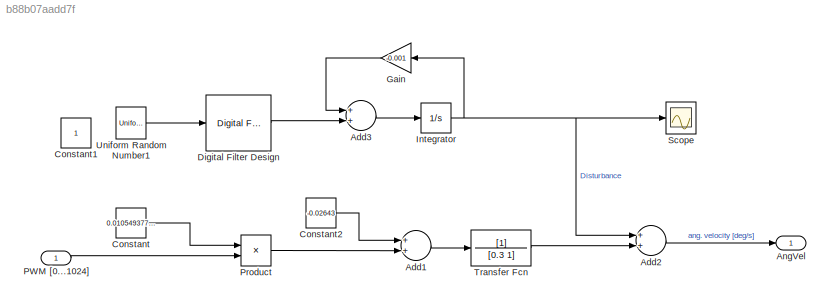
MODEL slx_b88b07aadd7f
KIND model
CONFIG AbsTol = auto
CONFIG FixedStep = 0.01
CONFIG MaxStep = auto
CONFIG MinStep = auto
CONFIG RelTol = 1e-3
CONFIG SampleTimeConstraint = Unconstrained
CONFIG Solver = ode45
CONFIG SolverMode = Auto
CONFIG SolverName = ode45
CONFIG StartTime = 0.0
CONFIG StopTime = 180
BLOCK [Sum] Add1
  InputSameDT = off
  OutDataTypeStr = Inherit: Inherit via internal rule
  Ports = [2, 1]
  SaturateOnIntegerOverflow = off
BLOCK [Sum] Add2
  InputSameDT = off
  OutDataTypeStr = Inherit: Inherit via internal rule
  Ports = [2, 1]
  SaturateOnIntegerOverflow = off
BLOCK [Sum] Add3
  InputSameDT = off
  OutDataTypeStr = Inherit: Inherit via internal rule
  Ports = [2, 1]
  SaturateOnIntegerOverflow = off
BLOCK [Outport] AngVel
  IconDisplay = Port number
BLOCK [Constant] Constant
  Value = 0.010549377/4
BLOCK [Constant] Constant1
  IOType = siggen
BLOCK [Constant] Constant2
  Value = -0.02643
BLOCK [Reference] Digital Filter Design  REF=dsparch4/Digital
Filter Design
  Ports = [1, 1]
  SourceBlock = dsparch4/Digital\nFilter Design
  SourceType = Digital Filter Design
  UserDataPersistent = on
  mwdsp_browser_bugfix_var = off
BLOCK [Gain] Gain
  Gain = -0.001
  OutDataTypeStr = Inherit: Inherit via internal rule
  ParamDataTypeStr = Inherit: Inherit via internal rule
  SaturateOnIntegerOverflow = off
BLOCK [Integrator] Integrator
  Ports = [1, 1]
BLOCK [Inport] PWM [0...1024]
  IconDisplay = Port number
  Interpolate = off
BLOCK [Product] Product
  InputSameDT = off
  OutDataTypeStr = Inherit: Inherit via internal rule
  Ports = [2, 1]
  RndMeth = Floor
  SaturateOnIntegerOverflow = off
BLOCK [Scope] Scope
  Floating = off
  NumInputPorts = 1
  Ports = [1]
BLOCK [TransferFcn] Transfer Fcn
  Denominator = [0.3 1]
BLOCK [UniformRandomNumber] Uniform Random Number1
  Maximum = 0.02
  Minimum = -0.02
  SampleTime = 0.1
  Seed = 22324
LINE Add1:1 -> Transfer Fcn:1
LINE Add2:1 -> AngVel:1
LINE Add3:1 -> Integrator:1
LINE Constant2:1 -> Add1:1
LINE Constant:1 -> Product:1
LINE Digital Filter Design:1 -> Add3:2
LINE Gain:1 -> Add3:1
NET Integrator:1 -> Add2:1, Gain:1, Scope:1
LINE PWM [0...1024]:1 -> Product:2
LINE Product:1 -> Add1:2
LINE Transfer Fcn:1 -> Add2:2
LINE Uniform Random Number1:1 -> Digital Filter Design:1
note: NET lines group one-source signal fan-out (src -> all destinations, sorted); 1:1 wires keep LINE
